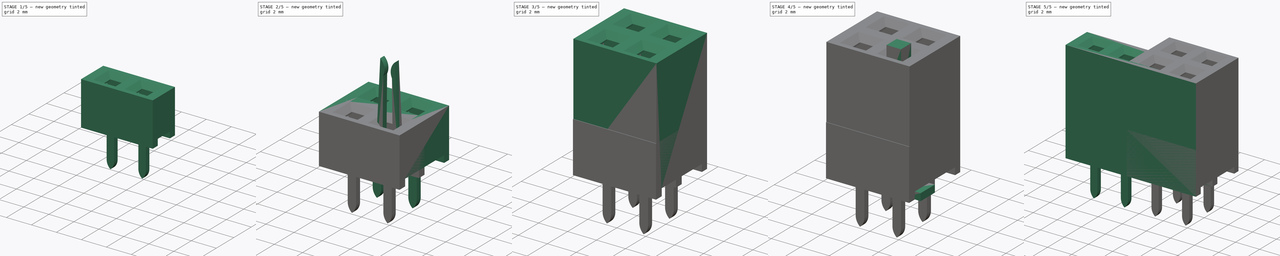
[diagram: build sequence overview — one tinted view per stage of 5, left to right]
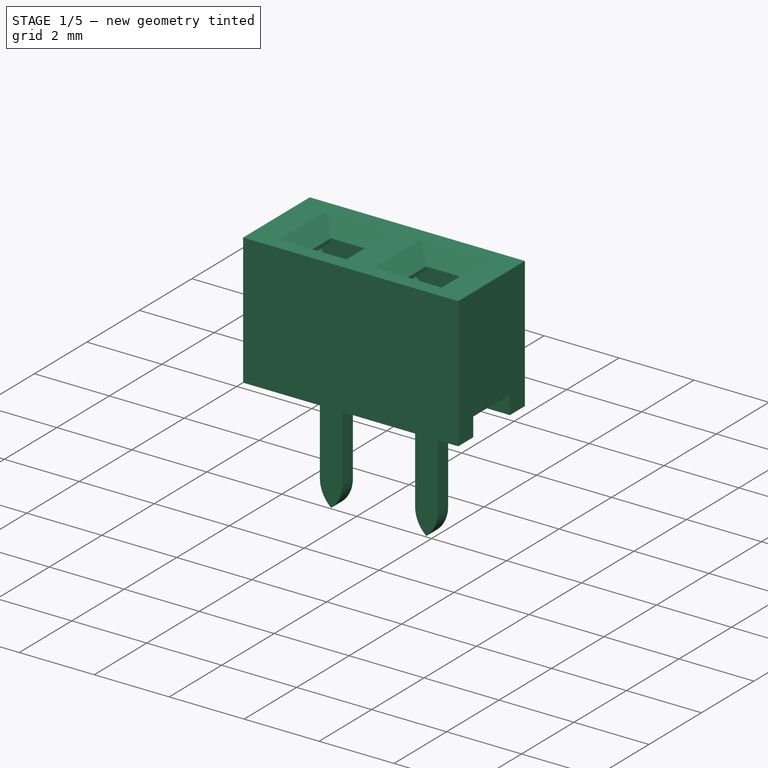
[diagram: stage 1 of 5 — iso view after this stage's code; geometry added in this stage tinted green]
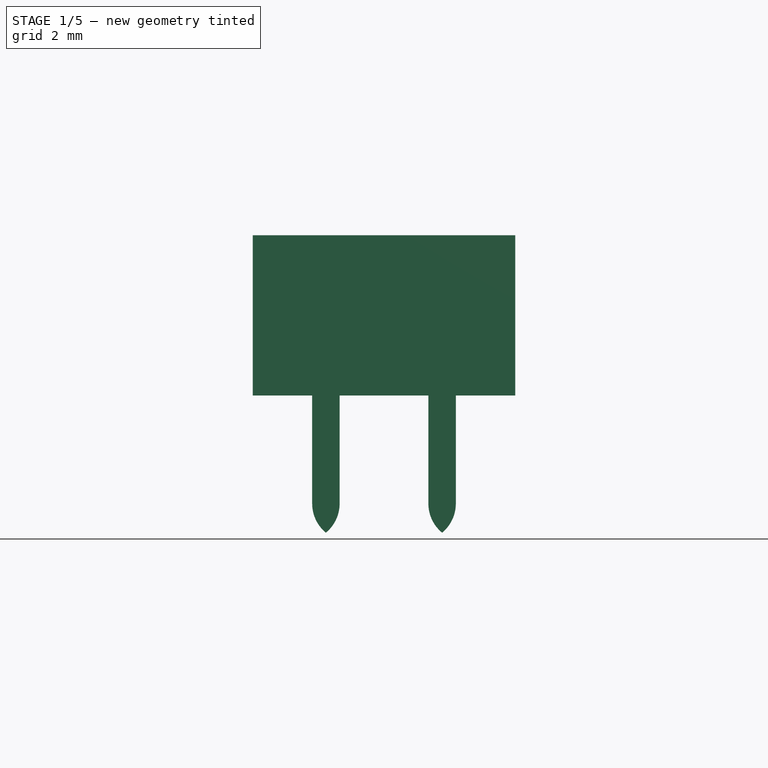
[diagram: stage 1 of 5 — front view after this stage's code; geometry added in this stage tinted green]
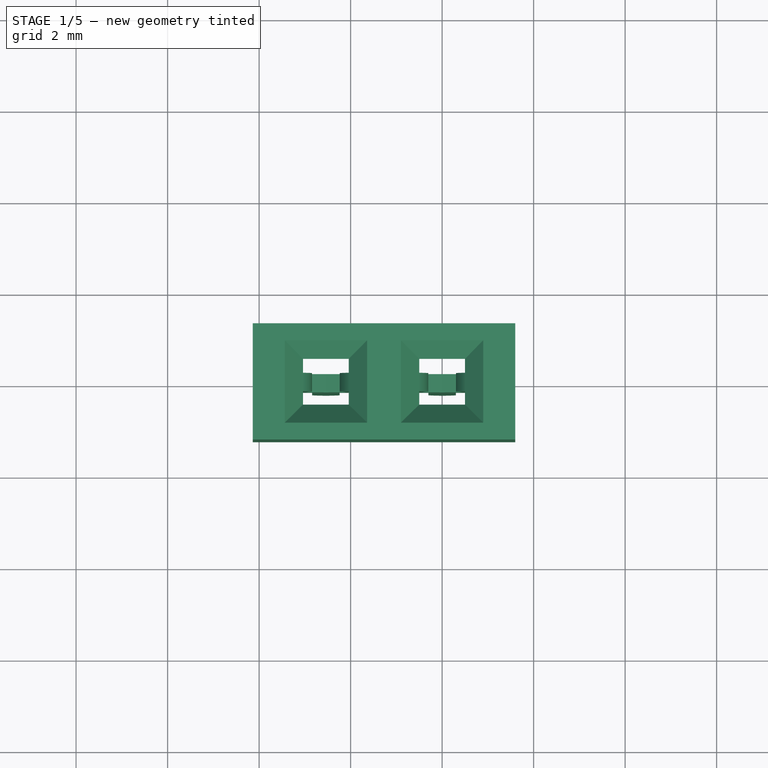
[diagram: stage 1 of 5 — top view after this stage's code; geometry added in this stage tinted green]
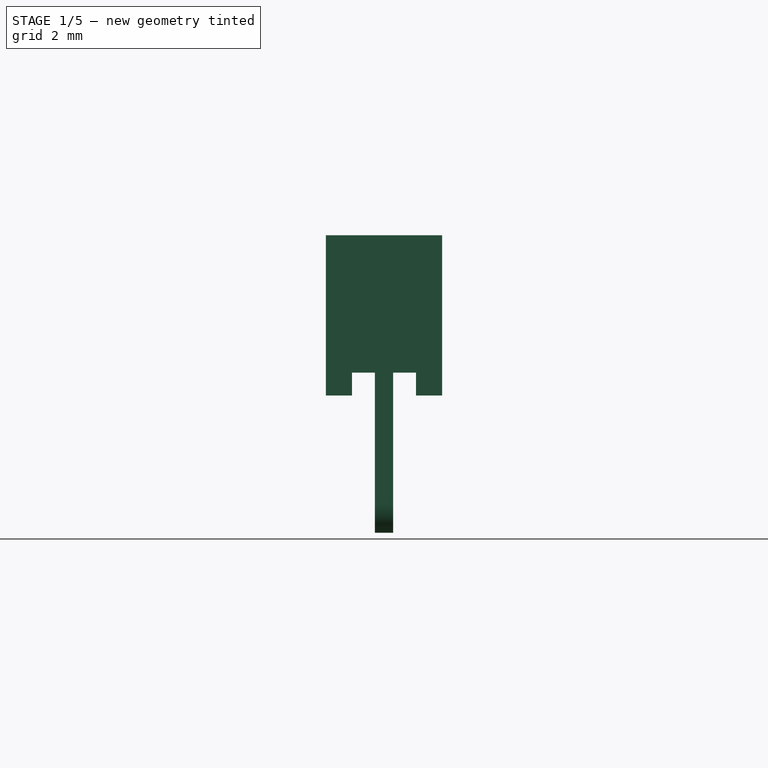
[diagram: stage 1 of 5 — right view after this stage's code; geometry added in this stage tinted green]
FCSTD DOCUMENT  (FreeCAD 0.16R6703 (Git))
Label: Socket_Strip_2.54mm
License: All rights reserved
LicenseURL: http://en.wikipedia.org/wiki/All_rights_reserved
objects: Part::Extrusion×18, Sketcher::SketchObject×15, Part::MultiFuse×13, Part::FeaturePython×12, Part::Cut×6, Part::Chamfer×6, Part::Mirroring×6, Part::Compound×5
note: 81 computed .brp shape members not serialized (recipe doc carries the construction recipe); baked Part::Feature solids carry a one-line shape summary decoded from their .brp

FEATURE [Sketcher::SketchObject] Sketch003
  sketch-geometry (4):
    g0: LineSegment StartX=-2 StartY=0.7 StartZ=0 EndX=2 EndY=0.7 EndZ=0
    g1: LineSegment StartX=2 StartY=0.7 StartZ=0 EndX=2 EndY=-0.7 EndZ=0
    g2: LineSegment StartX=2 StartY=-0.7 StartZ=0 EndX=-2 EndY=-0.7 EndZ=0
    g3: LineSegment StartX=-2 StartY=-0.7 StartZ=0 EndX=-2 EndY=0.7 EndZ=0
  constraints (12):
    c: Coincident(g0,g1)
    c: Coincident(g1,g2)
    c: Coincident(g2,g3)
    c: Coincident(g3,g0)
    c: Horizontal(g0)
    c: Horizontal(g2)
    c: Vertical(g1)
    c: Vertical(g3)
    c: Distance(g1) = 1.4
    c: Distance(g0) = 4
    c: Symmetric(g0,g0,g-2)
    c: Symmetric(g0,g2,g-1)
FEATURE [Part::Extrusion] Extrude003
  Base = -> Sketch003
  Dir = (0,0,0.5)
  Solid = true
FEATURE [Sketcher::SketchObject] Sketch007
  sketch-geometry (4):
    g0: LineSegment StartX=-0.5 StartY=0.5 StartZ=0 EndX=0.5 EndY=0.5 EndZ=0
    g1: LineSegment StartX=0.5 StartY=0.5 StartZ=0 EndX=0.5 EndY=-0.5 EndZ=0
    g2: LineSegment StartX=0.5 StartY=-0.5 StartZ=0 EndX=-0.5 EndY=-0.5 EndZ=0
    g3: LineSegment StartX=-0.5 StartY=-0.5 StartZ=0 EndX=-0.5 EndY=0.5 EndZ=0
  constraints (12):
    c: Coincident(g0,g1)
    c: Coincident(g1,g2)
    c: Coincident(g2,g3)
    c: Coincident(g3,g0)
    c: Horizontal(g0)
    c: Horizontal(g2)
    c: Vertical(g1)
    c: Vertical(g3)
    c: Distance(g1) = 1
    c: Distance(g0) = 1
    c: Symmetric(g0,g0,g-2)
    c: Symmetric(g0,g2,g-1)
FEATURE [Part::Extrusion] Extrude007
  Base = -> Sketch007
  Dir = (0,0,9)
  Solid = true
FEATURE [Sketcher::SketchObject] Sketch014
  Placement = pos=(0,-0.2,0) rot=(1,0,0;1.5708rad)
  sketch-geometry (8):
    g0: LineSegment StartX=-0.576584 StartY=2.96971 StartZ=0 EndX=-0.894618 EndY=0.740609 EndZ=0
    g1: LineSegment StartX=-0.894618 StartY=0.740609 StartZ=0 EndX=-0.3 EndY=0.601222 EndZ=0
    g2: LineSegment StartX=-0.3 StartY=0.601222 StartZ=0 EndX=-0.3 EndY=-2.36449 EndZ=0
    g3: LineSegment StartX=0 StartY=-3 StartZ=0 EndX=0 EndY=1.13693 EndZ=0
    g4: LineSegment StartX=0 StartY=1.13693 StartZ=0 EndX=-0.444653 EndY=1.17505 EndZ=0
    g5: LineSegment StartX=-0.444653 StartY=1.17505 StartZ=0 EndX=-0.383655 EndY=2.04428 EndZ=0
    g6: ArcOfCircle CenterX=-1.06757 CenterY=2.38453 CenterZ=0 NormalX=0 NormalY=0 NormalZ=1 Radius=0.763873 StartAngle=5.82154 EndAngle=7.15589
    g7: ArcOfCircle CenterX=0.523111 CenterY=-2.36449 CenterZ=0 NormalX=0 NormalY=0 NormalZ=1 Radius=0.823111 StartAngle=3.14159 EndAngle=4.0237
  constraints (14):
    c: Coincident(g0,g1)
    c: Coincident(g1,g2)
    c: Vertical(g2)
    c: PointOnObject(g3,g-2)
    c: Vertical(g3)
    c: Coincident(g3,g4)
    c: Coincident(g6,g0)
    c: Distance(g2,g3) = 0.3
    c: Coincident(g7,g2)
    c: Coincident(g7,g3)
    c: Tangent(g2,g7)
    c: Coincident(g5,g4)
    c: Coincident(g5,g6)
    c: DistanceY(g3) = -3
FEATURE [Part::Extrusion] Extrude014  label="pinHalf002"
  Base = -> Sketch014
  Dir = (0,0.4,0)
  Solid = true
FEATURE [Part::Mirroring] Part__Mirroring004  label="pinHalf (Mirror #1)002"
  Base = (0,0,0)
  Normal = (1,0,0)
  Source = -> Extrude014
FEATURE [Part::MultiFuse] Fusion008  label="pin002"
  Shapes = -> [Part__Mirroring004,Extrude014]
FEATURE [Part::Extrusion] Extrude016
  Base = -> Sketch006
  Dir = (0,0,3)
  Solid = true
FEATURE [Part::MultiFuse] Fusion012
  Shapes = -> [Extrude003,Extrude007,Extrude016]
FEATURE [Part::Extrusion] Extrude017
  Base = -> Sketch
  Dir = (0,0,3.5)
  Solid = true
FEATURE [Part::Cut] Cut005
  Base = -> Extrude017
  Tool = -> Fusion012
FEATURE [Part::Chamfer] Chamfer005
  Base = -> Cut005
  Edges = 4 edges r=0.4: [Edge23,Edge24,Edge25,Edge26]
FEATURE [Part::FeaturePython] Array010  # Draft array (typed FeaturePython)
  Angle = 360
  ArrayType = 0
  Axis = (0,0,1)
  Base = -> Chamfer005
  Center = (0,0,0)
  Fuse = true
  IntervalAxis = (0,0,0)
  IntervalX = (2.54,0,0)
  IntervalY = (0,1,0)
  IntervalZ = (0,0,0)
  NumberPolar = 1
  NumberX = 2
  NumberY = 1
  NumberZ = 1
FEATURE [Part::FeaturePython] Array011  label="pins005"  # Draft array (typed FeaturePython)
  Angle = 360
  ArrayType = 0
  Axis = (0,0,1)
  Base = -> Fusion008
  Center = (0,0,0)
  Fuse = true
  IntervalAxis = (0,0,0)
  IntervalX = (2.54,0,0)
  IntervalY = (0,2.54,0)
  IntervalZ = (0,0,0)
  NumberPolar = 1
  NumberX = 2
  NumberY = 1
  NumberZ = 1
FEATURE [Part::Compound] Compound004  label="1x02_H3.5"
  Links = -> [Array010,Array011]
  Placement = pos=(0,0,0) rot=(0,0,1;3.14159rad)
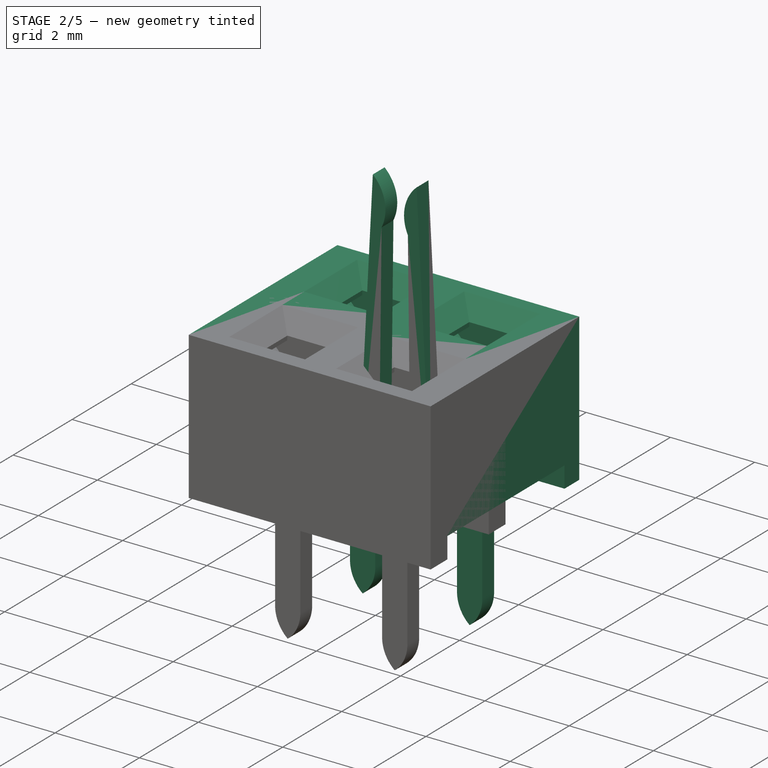
[diagram: stage 2 of 5 — iso view after this stage's code; geometry added in this stage tinted green]
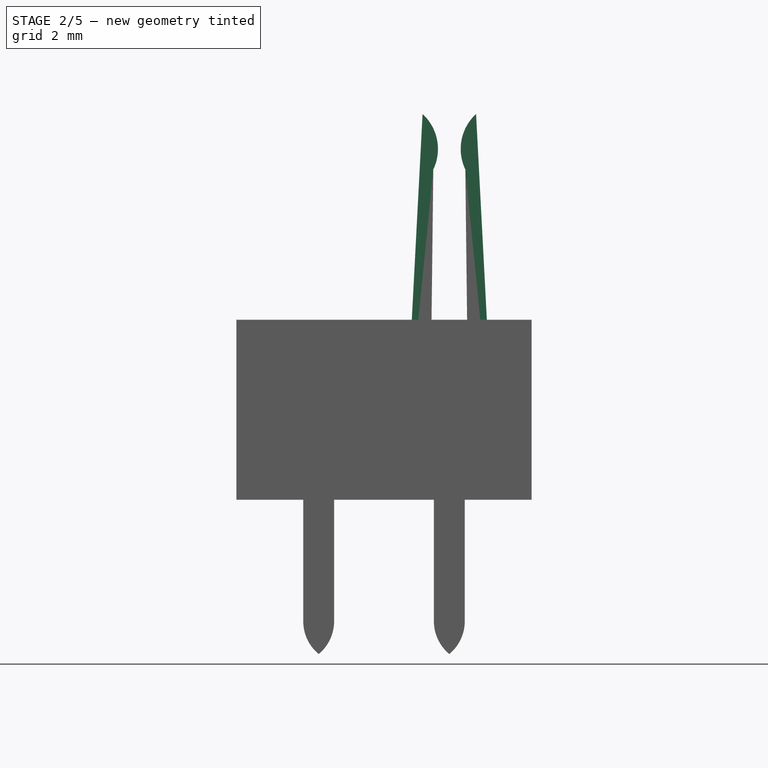
[diagram: stage 2 of 5 — front view after this stage's code; geometry added in this stage tinted green]
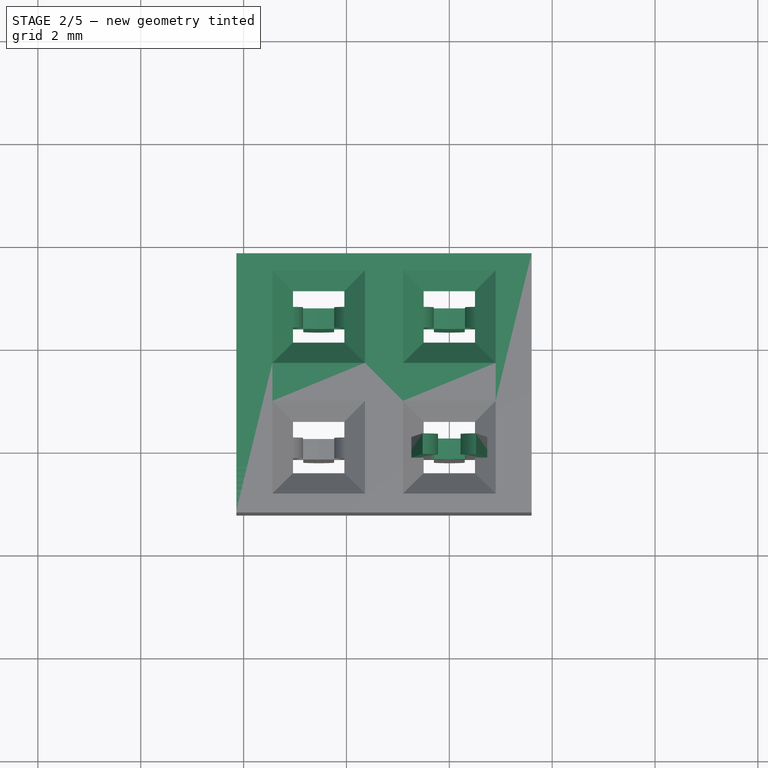
[diagram: stage 2 of 5 — top view after this stage's code; geometry added in this stage tinted green]
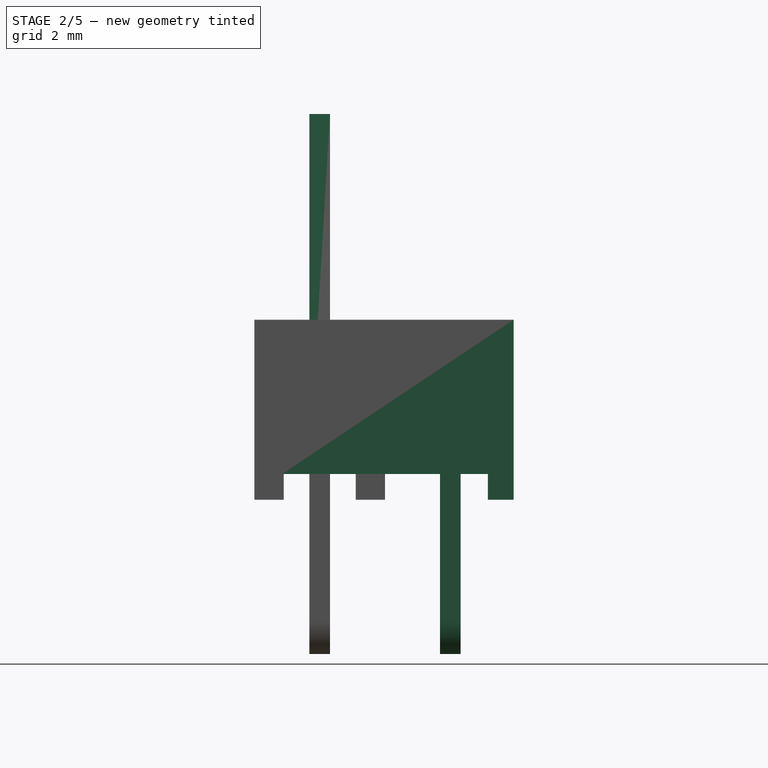
[diagram: stage 2 of 5 — right view after this stage's code; geometry added in this stage tinted green]
FEATURE [Sketcher::SketchObject] Sketch004
  Placement = pos=(0,-0.2,0) rot=(1,0,0;1.5708rad)
  sketch-geometry (8):
    g0: LineSegment StartX=-0.52 StartY=7.5 StartZ=0 EndX=-0.87243 EndY=0.77523 EndZ=0
    g1: LineSegment StartX=-0.87243 StartY=0.77523 StartZ=0 EndX=-0.3 EndY=0.601222 EndZ=0
    g2: LineSegment StartX=-0.3 StartY=0.601222 StartZ=0 EndX=-0.3 EndY=-2.36449 EndZ=0
    g3: LineSegment StartX=0 StartY=-3 StartZ=0 EndX=0 EndY=1.62804 EndZ=0
    g4: LineSegment StartX=0 StartY=1.62804 StartZ=0 EndX=-0.367163 EndY=1.67474 EndZ=0
    g5: LineSegment StartX=-0.367163 StartY=1.67474 StartZ=0 EndX=-0.311338 EndY=6.42108 EndZ=0
    g6: ArcOfCircle CenterX=-1.14503 CenterY=6.81948 CenterZ=0 NormalX=0 NormalY=0 NormalZ=1 Radius=0.923992 StartAngle=5.83739 EndAngle=7.11106
    g7: ArcOfCircle CenterX=0.523111 CenterY=-2.36449 CenterZ=0 NormalX=0 NormalY=0 NormalZ=1 Radius=0.823111 StartAngle=3.14159 EndAngle=4.0237
  constraints (17):
    c: Coincident(g0,g1)
    c: Coincident(g1,g2)
    c: Vertical(g2)
    c: PointOnObject(g3,g-2)
    c: Vertical(g3)
    c: Coincident(g3,g4)
    c: Coincident(g6,g0)
    c: Angle(g0) = -1.62316
    c: Distance(g2,g3) = 0.3
    c: Coincident(g7,g2)
    c: Coincident(g7,g3)
    c: Tangent(g2,g7)
    c: DistanceY(g0) = 7.5
    c: DistanceX(g0) = -0.52
    c: Coincident(g5,g4)
    c: Coincident(g5,g6)
    c: DistanceY(g3) = -3
FEATURE [Part::Extrusion] Extrude004  label="pinHalf"
  Base = -> Sketch004
  Dir = (0,0.4,0)
  Solid = true
FEATURE [Part::Mirroring] Part__Mirroring  label="pinHalf (Mirror #1)"
  Base = (0,0,0)
  Normal = (1,0,0)
  Source = -> Extrude004
FEATURE [Part::MultiFuse] Fusion001  label="pin"
  Shapes = -> [Part__Mirroring,Extrude004]
FEATURE [Sketcher::SketchObject] Sketch010
  sketch-geometry (4):
    g0: LineSegment StartX=-2 StartY=2 StartZ=0 EndX=2 EndY=2 EndZ=0
    g1: LineSegment StartX=2 StartY=2 StartZ=0 EndX=2 EndY=-2 EndZ=0
    g2: LineSegment StartX=2 StartY=-2 StartZ=0 EndX=-2 EndY=-2 EndZ=0
    g3: LineSegment StartX=-2 StartY=-2 StartZ=0 EndX=-2 EndY=2 EndZ=0
  constraints (12):
    c: Coincident(g0,g1)
    c: Coincident(g1,g2)
    c: Horizontal(g0)
    c: Horizontal(g2)
    c: Vertical(g1)
    c: Vertical(g3)
    c: Distance(g1) = 4
    c: Distance(g0) = 4
    c: Symmetric(g0,g0,g-2)
    c: Symmetric(g0,g2,g-1)
    c: Coincident(g2,g3)
    c: Coincident(g0,g3)
FEATURE [Part::Extrusion] Extrude010
  Base = -> Sketch010
  Dir = (0,0,0.5)
  Solid = true
FEATURE [Part::FeaturePython] Array008  label="pins004"  # Draft array (typed FeaturePython)
  Angle = 360
  ArrayType = 0
  Axis = (0,0,1)
  Base = -> Fusion008
  Center = (0,0,0)
  Fuse = true
  IntervalAxis = (0,0,0)
  IntervalX = (2.54,0,0)
  IntervalY = (0,2.54,0)
  IntervalZ = (0,0,0)
  NumberPolar = 1
  NumberX = 2
  NumberY = 2
  NumberZ = 1
  Placement = pos=(0,-1.27,0) rot=(0,0,1;0rad)
FEATURE [Part::Extrusion] Extrude015
  Base = -> Sketch011
  Dir = (0,0,3.5)
  Solid = true
FEATURE [Part::MultiFuse] Fusion010
  Placement = pos=(0,1.27,0) rot=(0,0,1;0rad)
  Shapes = -> [Extrude007,Extrude016]
FEATURE [Part::Mirroring] Part__Mirroring005  label="Fusion004 (Mirror #3)001"
  Base = (0,0,0)
  Normal = (0,1,0)
  Source = -> Fusion010
FEATURE [Part::MultiFuse] Fusion009
  Shapes = -> [Part__Mirroring005,Fusion010,Extrude010]
FEATURE [Part::Cut] Cut004
  Base = -> Extrude015
  Tool = -> Fusion009
FEATURE [Part::Chamfer] Chamfer004
  Base = -> Cut004
  Edges = 8 edges r=0.4: [Edge21,Edge22,Edge23,Edge24,Edge25,Edge26,Edge27,Edge28]
FEATURE [Part::FeaturePython] Array009  label="body004"  # Draft array (typed FeaturePython)
  Angle = 360
  ArrayType = 0
  Axis = (0,0,1)
  Base = -> Chamfer004
  Center = (0,0,0)
  Fuse = true
  IntervalAxis = (0,0,0)
  IntervalX = (2.54,0,0)
  IntervalY = (0,1,0)
  IntervalZ = (0,0,0)
  NumberPolar = 1
  NumberX = 2
  NumberY = 1
  NumberZ = 1
FEATURE [Part::MultiFuse] Fusion011  label="2x02_H3.5"
  Placement = pos=(0,1.27,0) rot=(0,0,1;3.14159rad)
  Shapes = -> [Array008,Array009]
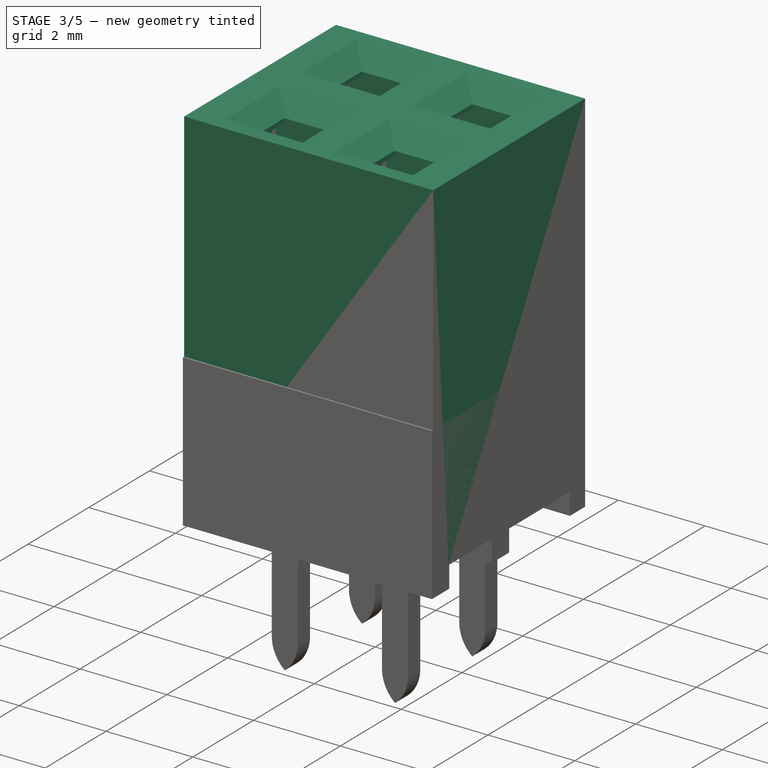
[diagram: stage 3 of 5 — iso view after this stage's code; geometry added in this stage tinted green]
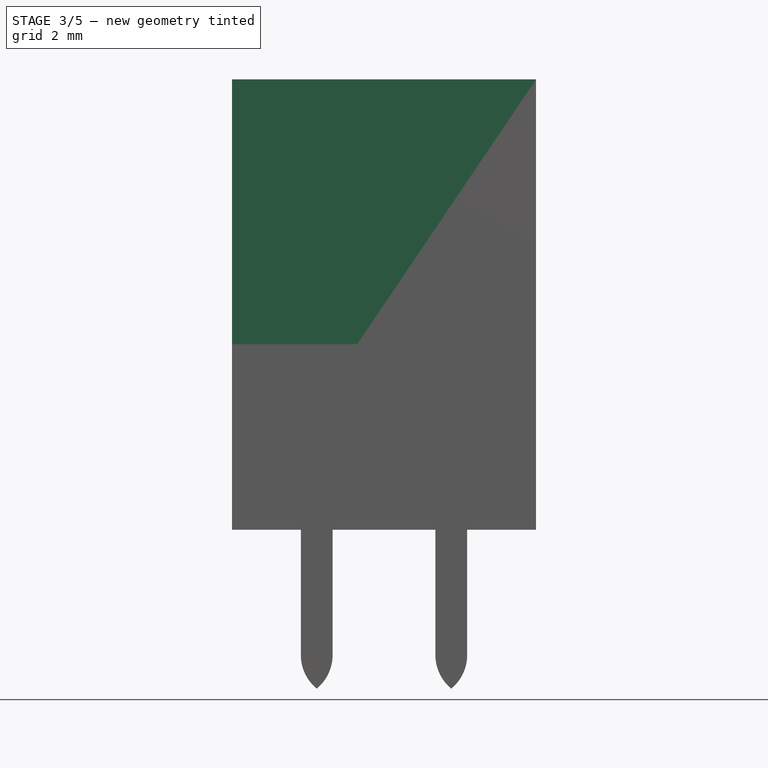
[diagram: stage 3 of 5 — front view after this stage's code; geometry added in this stage tinted green]
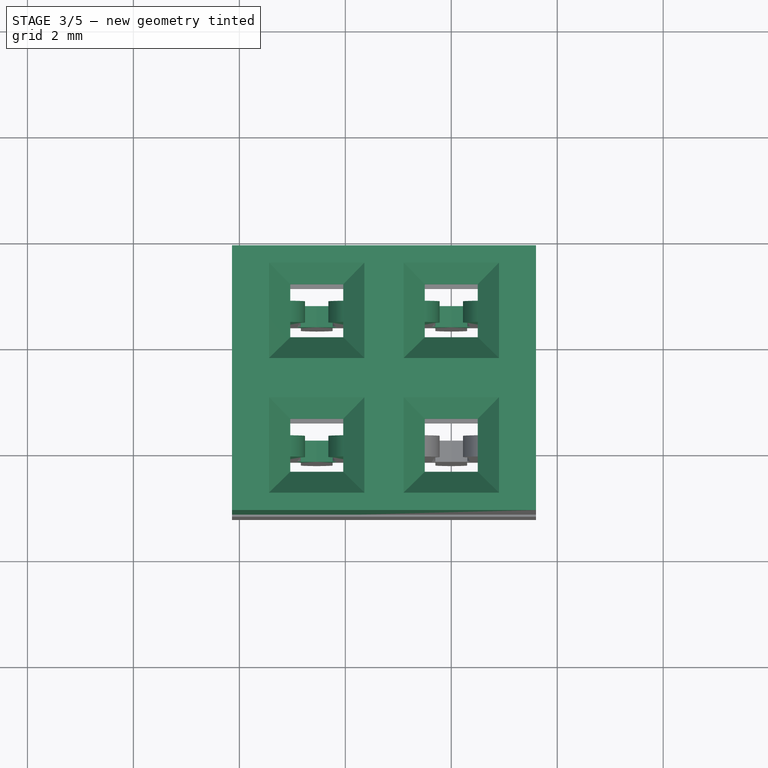
[diagram: stage 3 of 5 — top view after this stage's code; geometry added in this stage tinted green]
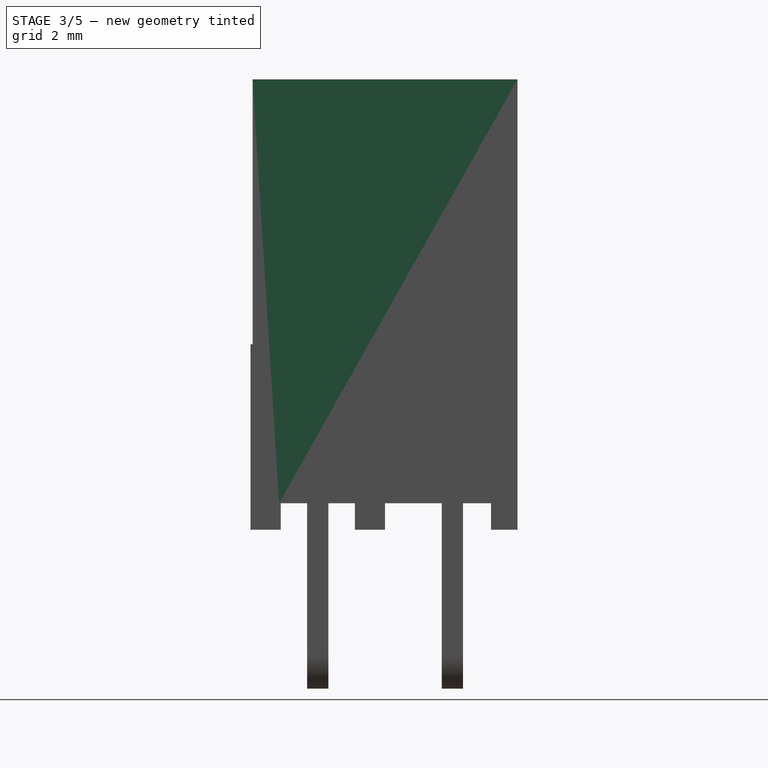
[diagram: stage 3 of 5 — right view after this stage's code; geometry added in this stage tinted green]
FEATURE [Sketcher::SketchObject] Sketch001
  sketch-geometry (4):
    g0: LineSegment StartX=-0.925 StartY=0.7 StartZ=0 EndX=0.925 EndY=0.7 EndZ=0
    g1: LineSegment StartX=0.925 StartY=0.7 StartZ=0 EndX=0.925 EndY=-0.7 EndZ=0
    g2: LineSegment StartX=0.925 StartY=-0.7 StartZ=0 EndX=-0.925 EndY=-0.7 EndZ=0
    g3: LineSegment StartX=-0.925 StartY=-0.7 StartZ=0 EndX=-0.925 EndY=0.7 EndZ=0
  constraints (12):
    c: Coincident(g0,g1)
    c: Coincident(g1,g2)
    c: Coincident(g2,g3)
    c: Coincident(g3,g0)
    c: Horizontal(g0)
    c: Horizontal(g2)
    c: Vertical(g1)
    c: Vertical(g3)
    c: Distance(g1) = 1.4
    c: Distance(g0) = 1.85
    c: Symmetric(g0,g0,g-2)
    c: Symmetric(g0,g2,g-1)
FEATURE [Part::Extrusion] Extrude001
  Base = -> Sketch001
  Dir = (0,0,8)
  Solid = true
FEATURE [Sketcher::SketchObject] Sketch002
  sketch-geometry (4):
    g0: LineSegment StartX=-0.5 StartY=0.5 StartZ=0 EndX=0.5 EndY=0.5 EndZ=0
    g1: LineSegment StartX=0.5 StartY=0.5 StartZ=0 EndX=0.5 EndY=-0.5 EndZ=0
    g2: LineSegment StartX=0.5 StartY=-0.5 StartZ=0 EndX=-0.5 EndY=-0.5 EndZ=0
    g3: LineSegment StartX=-0.5 StartY=-0.5 StartZ=0 EndX=-0.5 EndY=0.5 EndZ=0
  constraints (12):
    c: Coincident(g0,g1)
    c: Coincident(g1,g2)
    c: Coincident(g2,g3)
    c: Coincident(g3,g0)
    c: Horizontal(g0)
    c: Horizontal(g2)
    c: Vertical(g1)
    c: Vertical(g3)
    c: Distance(g1) = 1
    c: Distance(g0) = 1
    c: Symmetric(g0,g0,g-2)
    c: Symmetric(g0,g2,g-1)
FEATURE [Part::Extrusion] Extrude002
  Base = -> Sketch002
  Dir = (0,0,9)
  Solid = true
FEATURE [Sketcher::SketchObject] Sketch009
  Placement = pos=(0,-0.2,0) rot=(1,0,0;1.5708rad)
  sketch-geometry (8):
    g0: LineSegment StartX=-0.62527 StartY=6.19179 StartZ=0 EndX=-0.894618 EndY=0.740609 EndZ=0
    g1: LineSegment StartX=-0.894618 StartY=0.740609 StartZ=0 EndX=-0.3 EndY=0.601222 EndZ=0
    g2: LineSegment StartX=-0.3 StartY=0.601222 StartZ=0 EndX=-0.3 EndY=-2.36449 EndZ=0
    g3: LineSegment StartX=0 StartY=-3 StartZ=0 EndX=0 EndY=1.62804 EndZ=0
    g4: LineSegment StartX=0 StartY=1.62804 StartZ=0 EndX=-0.328584 EndY=1.53849 EndZ=0
    g5: LineSegment StartX=-0.328584 StartY=1.53849 StartZ=0 EndX=-0.391 EndY=5.2166 EndZ=0
    g6: ArcOfCircle CenterX=-1.11289 CenterY=5.55891 CenterZ=0 NormalX=0 NormalY=0 NormalZ=1 Radius=0.798941 StartAngle=5.8404 EndAngle=7.19749
    g7: ArcOfCircle CenterX=0.523111 CenterY=-2.36449 CenterZ=0 NormalX=0 NormalY=0 NormalZ=1 Radius=0.823111 StartAngle=3.14159 EndAngle=4.0237
  constraints (14):
    c: Coincident(g0,g1)
    c: Coincident(g1,g2)
    c: Vertical(g2)
    c: PointOnObject(g3,g-2)
    c: Vertical(g3)
    c: Coincident(g3,g4)
    c: Coincident(g6,g0)
    c: Distance(g2,g3) = 0.3
    c: Coincident(g7,g2)
    c: Coincident(g7,g3)
    c: Tangent(g2,g7)
    c: Coincident(g5,g4)
    c: Coincident(g5,g6)
    c: DistanceY(g3) = -3
FEATURE [Part::Extrusion] Extrude009  label="pinHalf001"
  Base = -> Sketch009
  Dir = (0,0.4,0)
  Solid = true
FEATURE [Part::Mirroring] Part__Mirroring001  label="pinHalf (Mirror #1)001"
  Base = (0,0,0)
  Normal = (1,0,0)
  Source = -> Extrude009
FEATURE [Sketcher::SketchObject] Sketch012
  sketch-geometry (4):
    g0: LineSegment StartX=-1.6 StartY=2.5 StartZ=0 EndX=1.6 EndY=2.5 EndZ=0
    g1: LineSegment StartX=1.6 StartY=2.5 StartZ=0 EndX=1.6 EndY=-2.5 EndZ=0
    g2: LineSegment StartX=1.6 StartY=-2.5 StartZ=0 EndX=-1.6 EndY=-2.5 EndZ=0
    g3: LineSegment StartX=-1.6 StartY=-2.5 StartZ=0 EndX=-1.6 EndY=2.5 EndZ=0
  constraints (12):
    c: Coincident(g0,g1)
    c: Coincident(g1,g2)
    c: Coincident(g2,g3)
    c: Coincident(g3,g0)
    c: Horizontal(g0)
    c: Horizontal(g2)
    c: Vertical(g1)
    c: Vertical(g3)
    c: Distance(g1) = 5
    c: Distance(g0) = 3.2
    c: Symmetric(g0,g0,g-2)
    c: Symmetric(g0,g2,g-1)
FEATURE [Part::Extrusion] Extrude012
  Base = -> Sketch012
  Dir = (0,0,8.5)
  Solid = true
FEATURE [Sketcher::SketchObject] Sketch013
  sketch-geometry (4):
    g0: LineSegment StartX=-2 StartY=2 StartZ=0 EndX=2 EndY=2 EndZ=0
    g1: LineSegment StartX=2 StartY=2 StartZ=0 EndX=2 EndY=-2 EndZ=0
    g2: LineSegment StartX=2 StartY=-2 StartZ=0 EndX=-2 EndY=-2 EndZ=0
    g3: LineSegment StartX=-2 StartY=-2 StartZ=0 EndX=-2 EndY=2 EndZ=0
  constraints (12):
    c: Coincident(g0,g1)
    c: Coincident(g1,g2)
    c: Coincident(g2,g3)
    c: Coincident(g3,g0)
    c: Horizontal(g0)
    c: Horizontal(g2)
    c: Vertical(g1)
    c: Vertical(g3)
    c: Distance(g1) = 4
    c: Distance(g0) = 4
    c: Symmetric(g0,g0,g-2)
    c: Symmetric(g0,g2,g-1)
FEATURE [Part::Extrusion] Extrude013
  Base = -> Sketch013
  Dir = (0,0,0.5)
  Solid = true
FEATURE [Part::MultiFuse] Fusion006
  Placement = pos=(0,1.27,0) rot=(0,0,1;0rad)
  Shapes = -> [Extrude002,Extrude001]
FEATURE [Part::Mirroring] Part__Mirroring003  label="Fusion006 (Mirror #4)"
  Base = (0,0,0)
  Normal = (0,1,0)
  Source = -> Fusion006
FEATURE [Part::MultiFuse] Fusion007
  Shapes = -> [Extrude013,Part__Mirroring003,Fusion006]
FEATURE [Part::Cut] Cut003
  Base = -> Extrude012
  Tool = -> Fusion007
FEATURE [Part::Chamfer] Chamfer003
  Base = -> Cut003
  Edges = 8 edges r=0.4: [Edge21,Edge22,Edge23,Edge24,Edge25,Edge26,Edge27,Edge28]
FEATURE [Part::FeaturePython] Array006  label="body003"  # Draft array (typed FeaturePython)
  Angle = 360
  ArrayType = 0
  Axis = (0,0,1)
  Base = -> Chamfer003
  Center = (0,0,0)
  Fuse = true
  IntervalAxis = (0,0,0)
  IntervalX = (2.54,0,0)
  IntervalY = (0,1,0)
  IntervalZ = (0,0,0)
  NumberPolar = 1
  NumberX = 2
  NumberY = 1
  NumberZ = 1
FEATURE [Part::FeaturePython] Array007  label="pins003"  # Draft array (typed FeaturePython)
  Angle = 360
  ArrayType = 0
  Axis = (0,0,1)
  Base = -> Fusion001
  Center = (0,0,0)
  Fuse = true
  IntervalAxis = (0,0,0)
  IntervalX = (2.54,0,0)
  IntervalY = (0,2.54,0)
  IntervalZ = (0,0,0)
  NumberPolar = 1
  NumberX = 2
  NumberY = 2
  NumberZ = 1
  Placement = pos=(0,-1.27,0) rot=(0,0,1;0rad)
FEATURE [Part::Compound] Compound003  label="2x02_H8.5"
  Links = -> [Array007,Array006]
  Placement = pos=(0,1.27,0) rot=(0,0,1;3.14159rad)
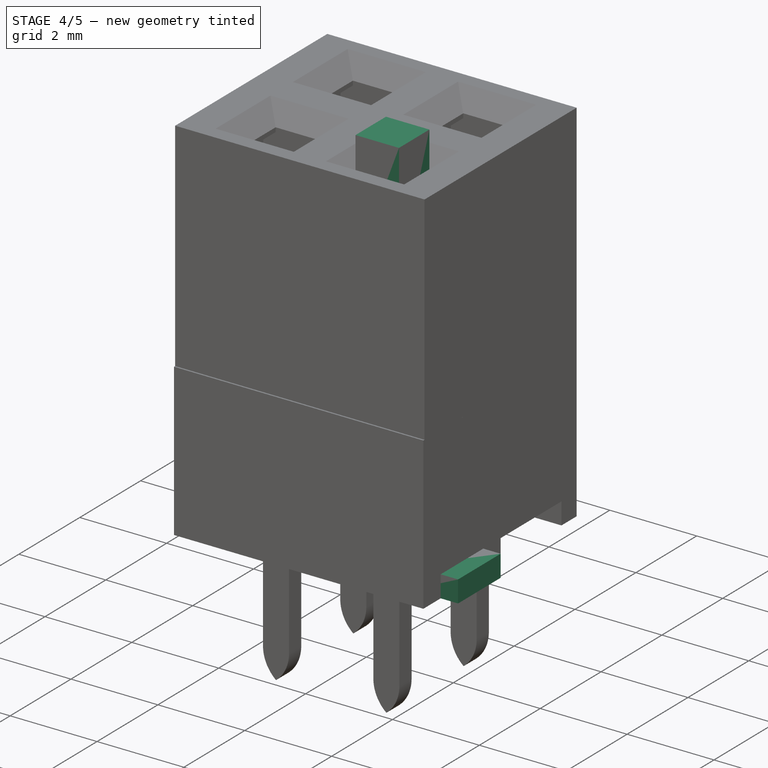
[diagram: stage 4 of 5 — iso view after this stage's code; geometry added in this stage tinted green]
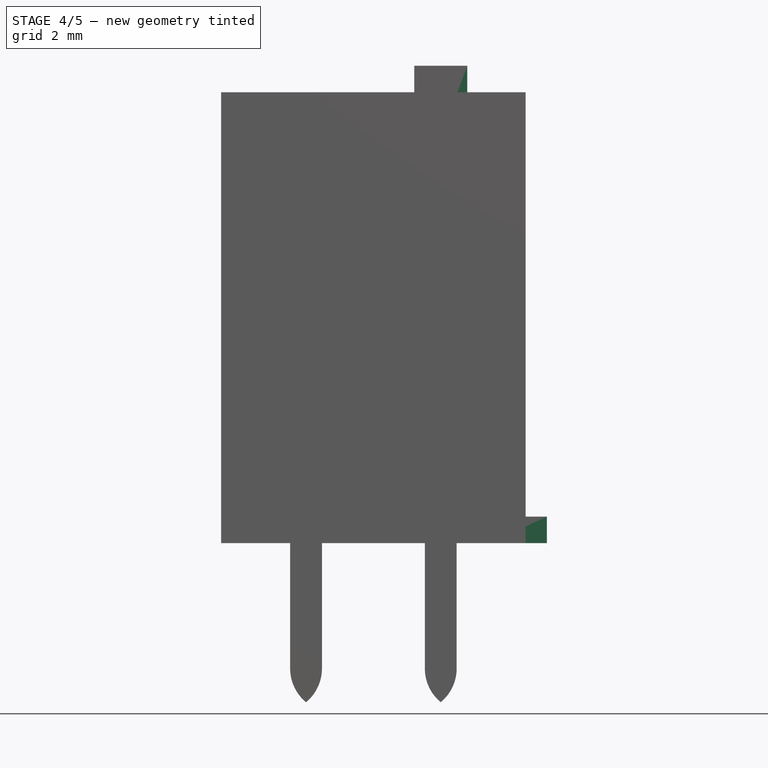
[diagram: stage 4 of 5 — front view after this stage's code; geometry added in this stage tinted green]
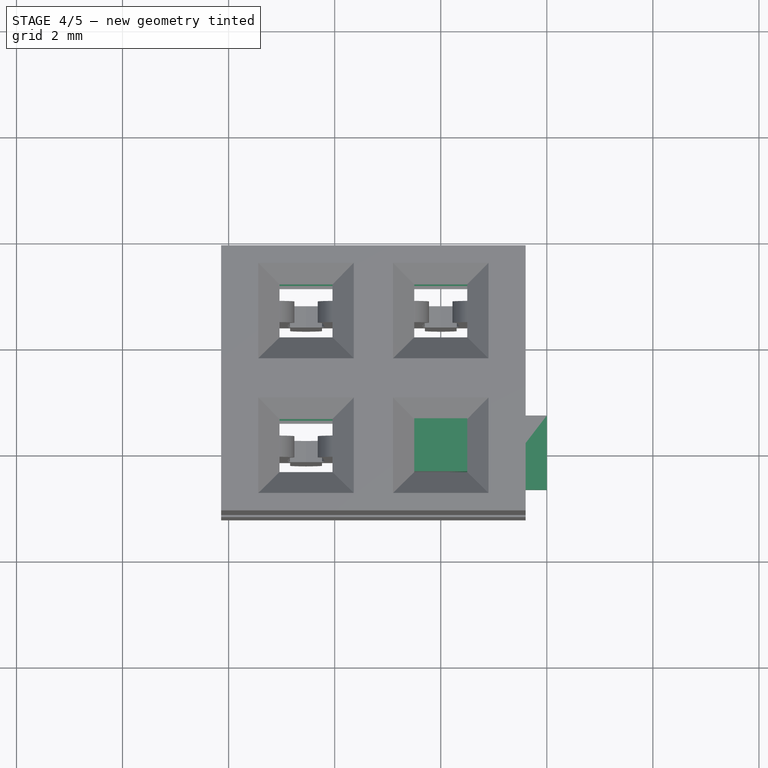
[diagram: stage 4 of 5 — top view after this stage's code; geometry added in this stage tinted green]
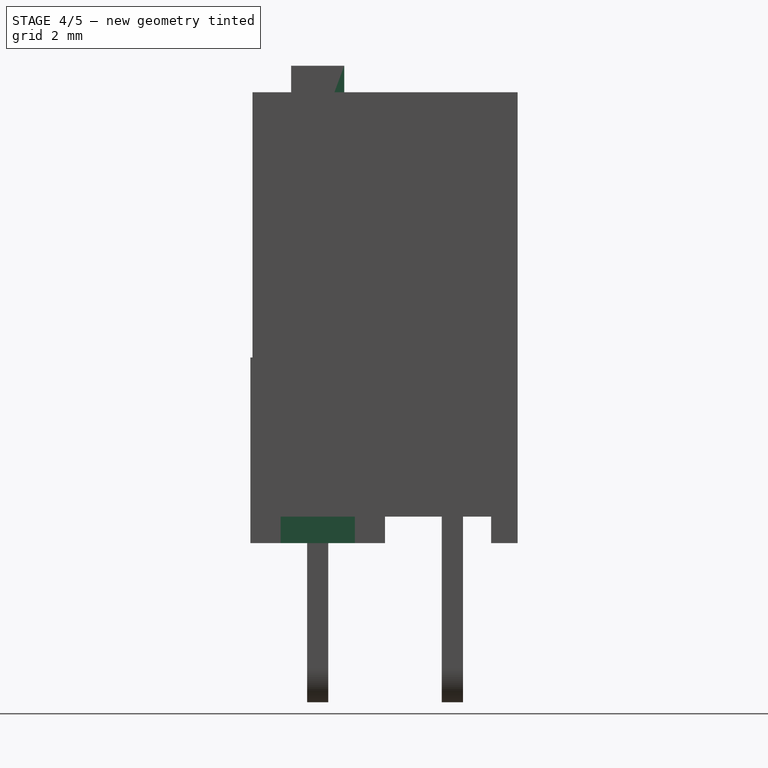
[diagram: stage 4 of 5 — right view after this stage's code; geometry added in this stage tinted green]
FEATURE [Sketcher::SketchObject] Sketch006
  sketch-geometry (4):
    g0: LineSegment StartX=-0.925 StartY=0.7 StartZ=0 EndX=0.925 EndY=0.7 EndZ=0
    g1: LineSegment StartX=0.925 StartY=0.7 StartZ=0 EndX=0.925 EndY=-0.7 EndZ=0
    g2: LineSegment StartX=0.925 StartY=-0.7 StartZ=0 EndX=-0.925 EndY=-0.7 EndZ=0
    g3: LineSegment StartX=-0.925 StartY=-0.7 StartZ=0 EndX=-0.925 EndY=0.7 EndZ=0
  constraints (12):
    c: Coincident(g0,g1)
    c: Coincident(g1,g2)
    c: Coincident(g2,g3)
    c: Coincident(g3,g0)
    c: Horizontal(g0)
    c: Horizontal(g2)
    c: Vertical(g1)
    c: Vertical(g3)
    c: Distance(g1) = 1.4
    c: Distance(g0) = 1.85
    c: Symmetric(g0,g0,g-2)
    c: Symmetric(g0,g2,g-1)
FEATURE [Part::Extrusion] Extrude006
  Base = -> Sketch006
  Dir = (0,0,6.3)
  Solid = true
FEATURE [Sketcher::SketchObject] Sketch008
  sketch-geometry (4):
    g0: LineSegment StartX=-2 StartY=0.7 StartZ=0 EndX=2 EndY=0.7 EndZ=0
    g1: LineSegment StartX=2 StartY=0.7 StartZ=0 EndX=2 EndY=-0.7 EndZ=0
    g2: LineSegment StartX=2 StartY=-0.7 StartZ=0 EndX=-2 EndY=-0.7 EndZ=0
    g3: LineSegment StartX=-2 StartY=-0.7 StartZ=0 EndX=-2 EndY=0.7 EndZ=0
  constraints (12):
    c: Coincident(g0,g1)
    c: Coincident(g1,g2)
    c: Coincident(g2,g3)
    c: Coincident(g3,g0)
    c: Horizontal(g0)
    c: Horizontal(g2)
    c: Vertical(g1)
    c: Vertical(g3)
    c: Distance(g1) = 1.4
    c: Distance(g0) = 4
    c: Symmetric(g0,g0,g-2)
    c: Symmetric(g0,g2,g-1)
FEATURE [Part::Extrusion] Extrude008
  Base = -> Sketch008
  Dir = (0,0,0.5)
  Solid = true
FEATURE [Part::MultiFuse] Fusion002
  Shapes = -> [Extrude006,Extrude007,Extrude008]
FEATURE [Part::MultiFuse] Fusion003  label="pin001"
  Shapes = -> [Part__Mirroring001,Extrude009]
FEATURE [Part::MultiFuse] Fusion004
  Placement = pos=(0,1.27,0) rot=(0,0,1;0rad)
  Shapes = -> [Extrude007,Extrude006]
FEATURE [Part::Mirroring] Part__Mirroring002  label="Fusion004 (Mirror #3)"
  Base = (0,0,0)
  Normal = (0,1,0)
  Source = -> Fusion004
FEATURE [Part::MultiFuse] Fusion005
  Shapes = -> [Part__Mirroring002,Fusion004,Extrude010]
FEATURE [Sketcher::SketchObject] Sketch011
  sketch-geometry (4):
    g0: LineSegment StartX=-1.6 StartY=2.5 StartZ=0 EndX=1.6 EndY=2.5 EndZ=0
    g1: LineSegment StartX=1.6 StartY=2.5 StartZ=0 EndX=1.6 EndY=-2.5 EndZ=0
    g2: LineSegment StartX=1.6 StartY=-2.5 StartZ=0 EndX=-1.6 EndY=-2.5 EndZ=0
    g3: LineSegment StartX=-1.6 StartY=-2.5 StartZ=0 EndX=-1.6 EndY=2.5 EndZ=0
  constraints (12):
    c: Coincident(g0,g1)
    c: Coincident(g1,g2)
    c: Coincident(g2,g3)
    c: Coincident(g3,g0)
    c: Horizontal(g0)
    c: Horizontal(g2)
    c: Vertical(g1)
    c: Vertical(g3)
    c: Distance(g1) = 5
    c: Distance(g0) = 3.2
    c: Symmetric(g0,g0,g-2)
    c: Symmetric(g0,g2,g-1)
FEATURE [Part::Extrusion] Extrude011
  Base = -> Sketch011
  Dir = (0,0,6.8)
  Solid = true
FEATURE [Part::Cut] Cut
  Base = -> Extrude011
  Tool = -> Fusion005
FEATURE [Part::Chamfer] Chamfer002
  Base = -> Cut
  Edges = 8 edges r=0.4: [Edge21,Edge22,Edge23,Edge24,Edge25,Edge26,Edge27,Edge28]
FEATURE [Part::FeaturePython] Array004  label="body002"  # Draft array (typed FeaturePython)
  Angle = 360
  ArrayType = 0
  Axis = (0,0,1)
  Base = -> Chamfer002
  Center = (0,0,0)
  Fuse = true
  IntervalAxis = (0,0,0)
  IntervalX = (2.54,0,0)
  IntervalY = (0,1,0)
  IntervalZ = (0,0,0)
  NumberPolar = 1
  NumberX = 2
  NumberY = 1
  NumberZ = 1
FEATURE [Part::FeaturePython] Array005  label="pins002"  # Draft array (typed FeaturePython)
  Angle = 360
  ArrayType = 0
  Axis = (0,0,1)
  Base = -> Fusion003
  Center = (0,0,0)
  Fuse = true
  IntervalAxis = (0,0,0)
  IntervalX = (2.54,0,0)
  IntervalY = (0,2.54,0)
  IntervalZ = (0,0,0)
  NumberPolar = 1
  NumberX = 2
  NumberY = 2
  NumberZ = 1
  Placement = pos=(0,-1.27,0) rot=(0,0,1;0rad)
FEATURE [Part::Compound] Compound002  label="2x02_H6.8"
  Links = -> [Array005,Array004]
  Placement = pos=(0,1.27,0) rot=(0,0,1;3.14159rad)
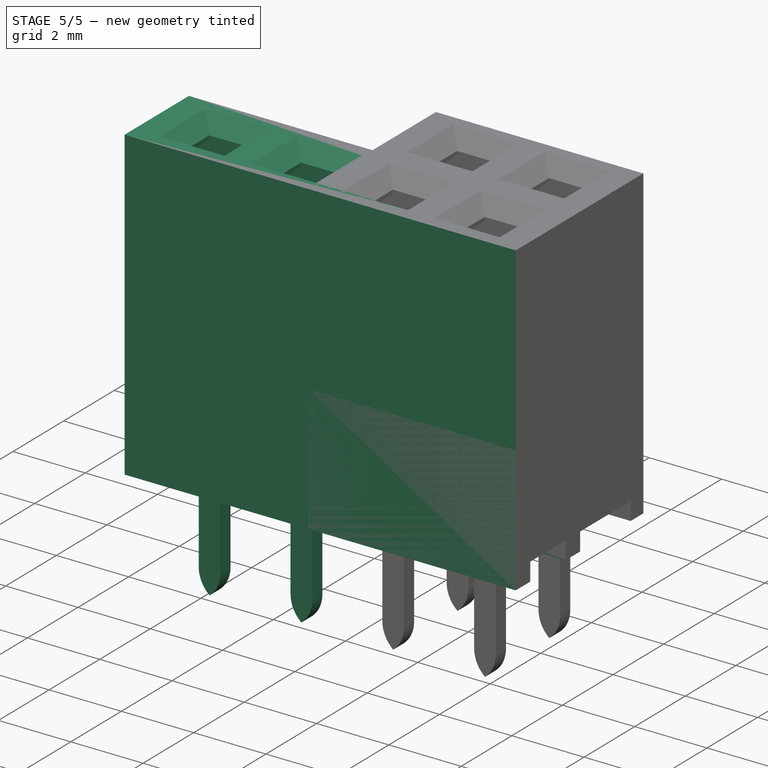
[diagram: stage 5 of 5 — iso view after this stage's code; geometry added in this stage tinted green]
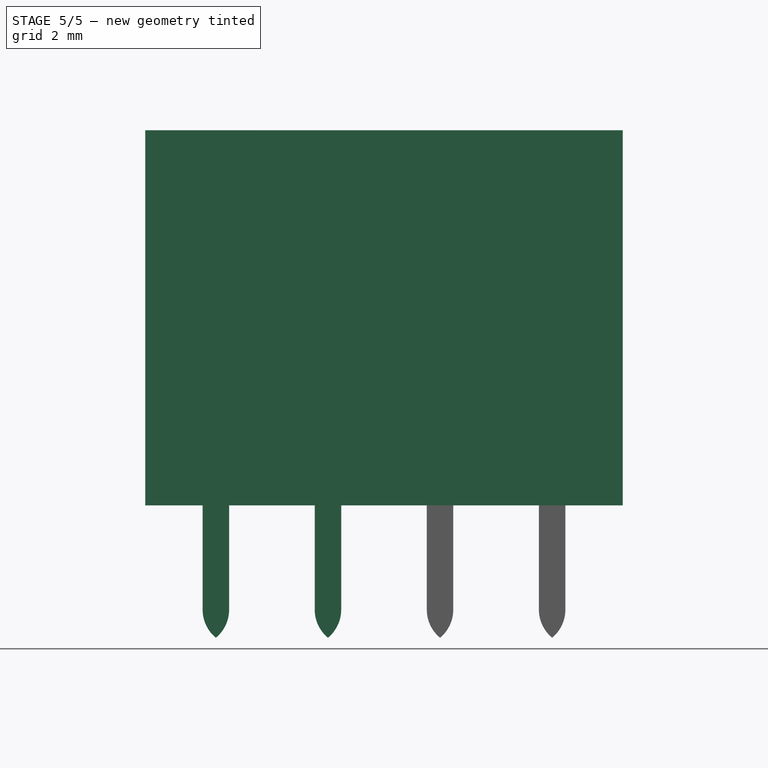
[diagram: stage 5 of 5 — front view after this stage's code; geometry added in this stage tinted green]
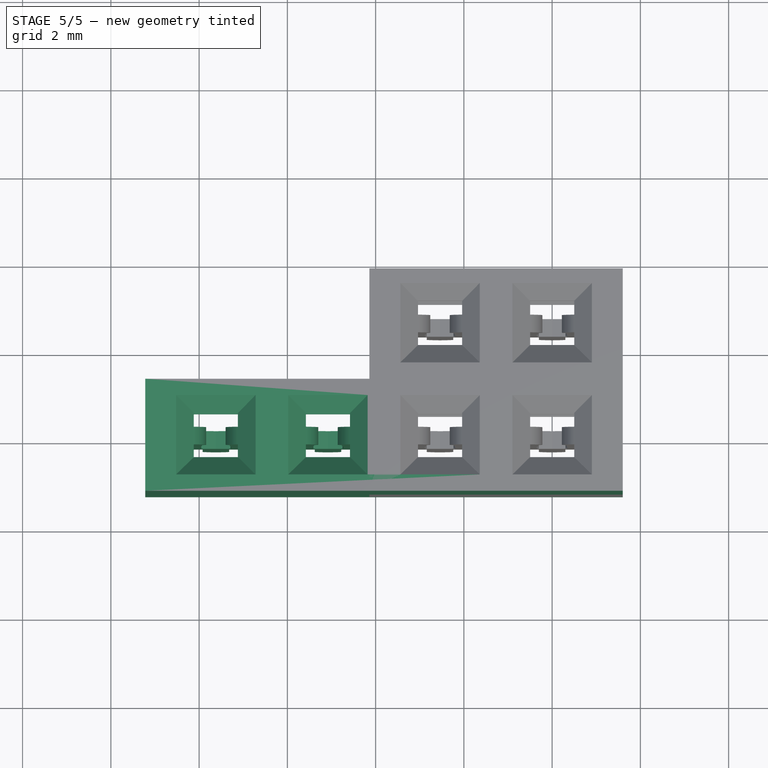
[diagram: stage 5 of 5 — top view after this stage's code; geometry added in this stage tinted green]
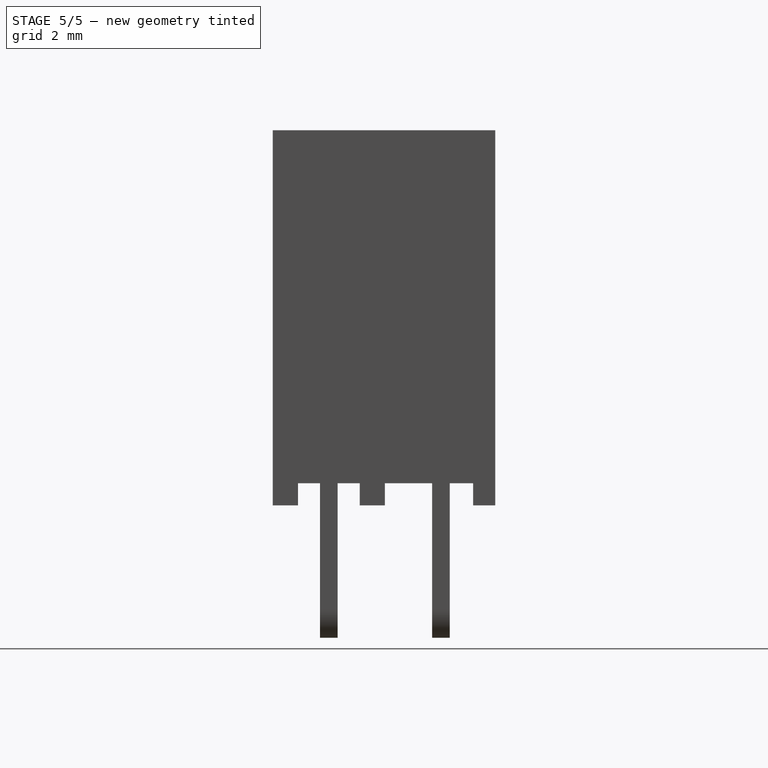
[diagram: stage 5 of 5 — right view after this stage's code; geometry added in this stage tinted green]
FEATURE [Sketcher::SketchObject] Sketch
  sketch-geometry (4):
    g0: LineSegment StartX=-1.6 StartY=1.27 StartZ=0 EndX=1.6 EndY=1.27 EndZ=0
    g1: LineSegment StartX=1.6 StartY=1.27 StartZ=0 EndX=1.6 EndY=-1.27 EndZ=0
    g2: LineSegment StartX=1.6 StartY=-1.27 StartZ=0 EndX=-1.6 EndY=-1.27 EndZ=0
    g3: LineSegment StartX=-1.6 StartY=-1.27 StartZ=0 EndX=-1.6 EndY=1.27 EndZ=0
  constraints (12):
    c: Coincident(g0,g1)
    c: Coincident(g1,g2)
    c: Coincident(g2,g3)
    c: Coincident(g3,g0)
    c: Horizontal(g0)
    c: Horizontal(g2)
    c: Vertical(g1)
    c: Vertical(g3)
    c: Distance(g1) = 2.54
    c: Distance(g0) = 3.2
    c: Symmetric(g0,g0,g-2)
    c: Symmetric(g0,g2,g-1)
FEATURE [Part::Extrusion] Extrude
  Base = -> Sketch
  Dir = (0,0,8.5)
  Solid = true
FEATURE [Part::MultiFuse] Fusion
  Shapes = -> [Extrude001,Extrude002,Extrude003]
FEATURE [Part::Cut] Cut001
  Base = -> Extrude
  Tool = -> Fusion
FEATURE [Part::Chamfer] Chamfer
  Base = -> Cut001
  Edges = 4 edges r=0.4: [Edge23,Edge24,Edge25,Edge26]
FEATURE [Part::FeaturePython] Array  label="pins"  # Draft array (typed FeaturePython)
  Angle = 360
  ArrayType = 0
  Axis = (0,0,1)
  Base = -> Fusion001
  Center = (0,0,0)
  Fuse = true
  IntervalAxis = (0,0,0)
  IntervalX = (2.54,0,0)
  IntervalY = (0,1,0)
  IntervalZ = (0,0,0)
  NumberPolar = 1
  NumberX = 4
  NumberY = 1
  NumberZ = 1
FEATURE [Part::FeaturePython] Array001  label="body"  # Draft array (typed FeaturePython)
  Angle = 360
  ArrayType = 0
  Axis = (0,0,1)
  Base = -> Chamfer
  Center = (0,0,0)
  Fuse = true
  IntervalAxis = (0,0,0)
  IntervalX = (2.54,0,0)
  IntervalY = (0,1,0)
  IntervalZ = (0,0,0)
  NumberPolar = 1
  NumberX = 4
  NumberY = 1
  NumberZ = 1
FEATURE [Part::Compound] Compound  label="1x04_H8.5"
  Links = -> [Array,Array001]
  Placement = pos=(0,0,0) rot=(0,0,1;3.14159rad)
FEATURE [Sketcher::SketchObject] Sketch005
  sketch-geometry (4):
    g0: LineSegment StartX=-1.6 StartY=1.2 StartZ=0 EndX=1.6 EndY=1.2 EndZ=0
    g1: LineSegment StartX=1.6 StartY=1.2 StartZ=0 EndX=1.6 EndY=-1.2 EndZ=0
    g2: LineSegment StartX=1.6 StartY=-1.2 StartZ=0 EndX=-1.6 EndY=-1.2 EndZ=0
    g3: LineSegment StartX=-1.6 StartY=-1.2 StartZ=0 EndX=-1.6 EndY=1.2 EndZ=0
  constraints (12):
    c: Coincident(g0,g1)
    c: Coincident(g1,g2)
    c: Coincident(g2,g3)
    c: Coincident(g3,g0)
    c: Horizontal(g0)
    c: Horizontal(g2)
    c: Vertical(g1)
    c: Vertical(g3)
    c: Distance(g1) = 2.4
    c: Distance(g0) = 3.2
    c: Symmetric(g0,g0,g-2)
    c: Symmetric(g0,g2,g-1)
FEATURE [Part::Extrusion] Extrude005
  Base = -> Sketch005
  Dir = (0,0,6.8)
  Solid = true
FEATURE [Part::Cut] Cut002
  Base = -> Extrude005
  Tool = -> Fusion002
FEATURE [Part::Chamfer] Chamfer001
  Base = -> Cut002
  Edges = 4 edges r=0.4: [Edge23,Edge24,Edge25,Edge26]
FEATURE [Part::FeaturePython] Array002  label="pins001"  # Draft array (typed FeaturePython)
  Angle = 360
  ArrayType = 0
  Axis = (0,0,1)
  Base = -> Fusion003
  Center = (0,0,0)
  Fuse = true
  IntervalAxis = (0,0,0)
  IntervalX = (2.54,0,0)
  IntervalY = (0,1,0)
  IntervalZ = (0,0,0)
  NumberPolar = 1
  NumberX = 4
  NumberY = 1
  NumberZ = 1
FEATURE [Part::FeaturePython] Array003  label="body001"  # Draft array (typed FeaturePython)
  Angle = 360
  ArrayType = 0
  Axis = (0,0,1)
  Base = -> Chamfer001
  Center = (0,0,0)
  Fuse = true
  IntervalAxis = (0,0,0)
  IntervalX = (2.54,0,0)
  IntervalY = (0,1,0)
  IntervalZ = (0,0,0)
  NumberPolar = 1
  NumberX = 4
  NumberY = 1
  NumberZ = 1
FEATURE [Part::Compound] Compound001  label="1x04_H6.8"
  Links = -> [Array002,Array003]
  Placement = pos=(0,0,0) rot=(0,0,1;3.14159rad)
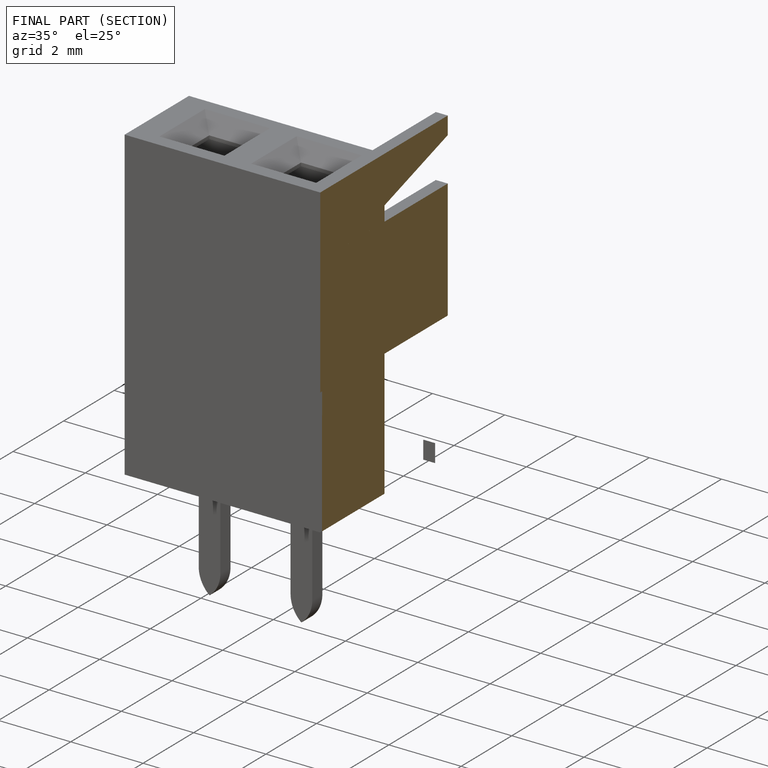
[diagram: finished part — half-section view (interior)]
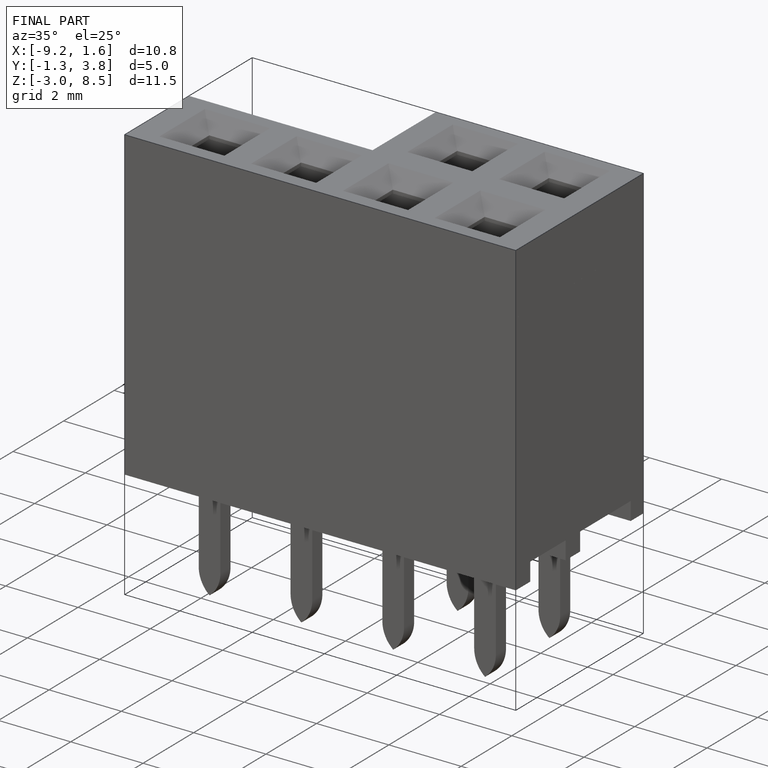
[diagram: finished part — iso view with bounding-box wireframe]
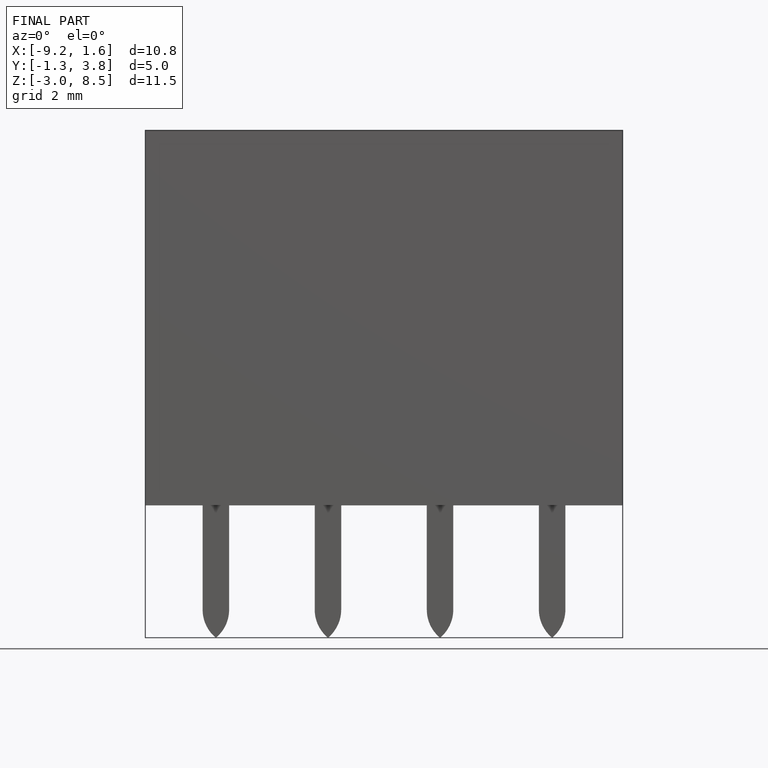
[diagram: finished part — front view with bounding-box wireframe]
